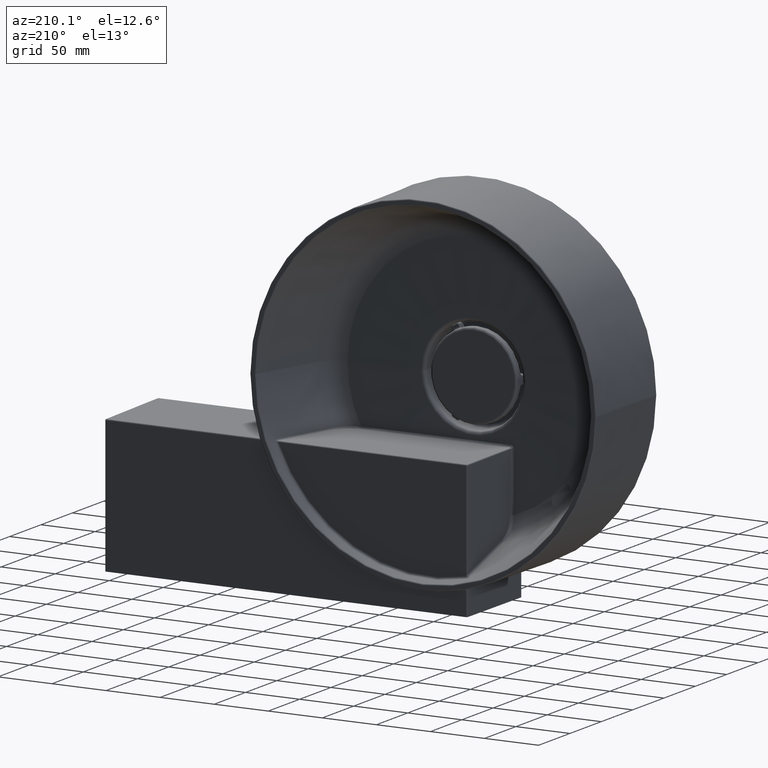
[diagram: clean part render]
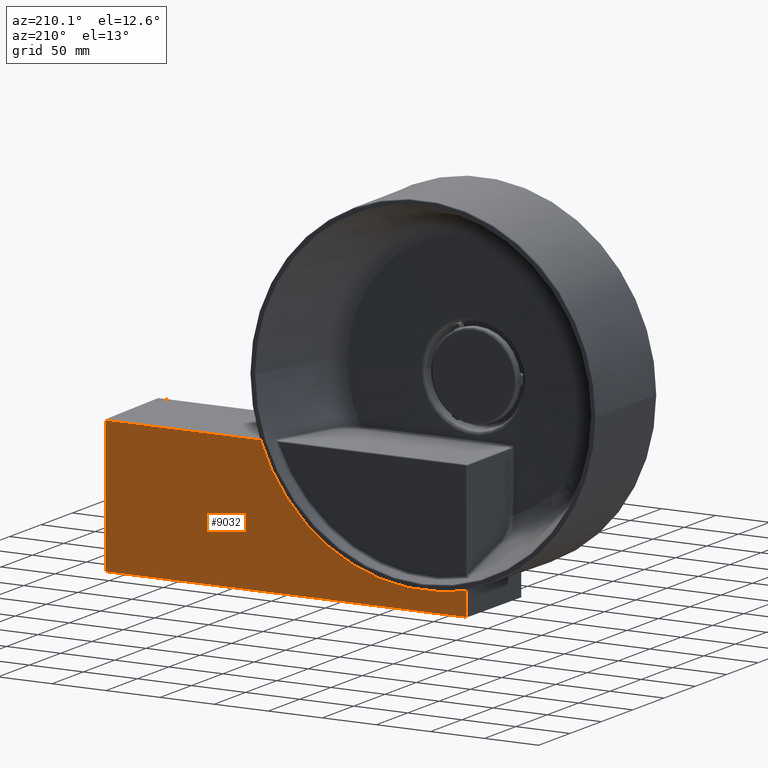
[diagram: same view with one face highlighted and labeled with its STEP entity id]
A machine part, auxiliary view. The second image highlights one B-rep face of the part: STEP entity #9032.
In plain terms, the highlighted planar face has unit normal (-0, 1, 0).
Its self-contained STEP definition (entity closure, byte-faithful):
#9 = LINE ( 'NONE', #3364, #6969 ) ;
#104 = CIRCLE ( 'NONE', #7248, 162.0612403866282420 ) ;
#328 = VERTEX_POINT ( 'NONE', #9225 ) ;
#1047 = CARTESIAN_POINT ( 'NONE',  ( -1.303350081333859496E-14, 106.7993909727526614, 0.0000000000000000000 ) ) ;
#1377 = DIRECTION ( 'NONE',  ( 1.242786967863980845E-16, -1.000000000000000000, -0.0000000000000000000 ) ) ;
#1574 = ORIENTED_EDGE ( 'NONE', *, *, #7617, .T. ) ;
#1639 = VERTEX_POINT ( 'NONE', #5025 ) ;
#1660 = ORIENTED_EDGE ( 'NONE', *, *, #6269, .T. ) ;
#1695 = ORIENTED_EDGE ( 'NONE', *, *, #9076, .T. ) ;
#1744 = CARTESIAN_POINT ( 'NONE',  ( 299.0086887894050847, 106.7993909727527040, 0.0000000000000000000 ) ) ;
#1752 = ORIENTED_EDGE ( 'NONE', *, *, #8671, .T. ) ;
#1804 = ORIENTED_EDGE ( 'NONE', *, *, #9615, .F. ) ;
#1944 = VECTOR ( 'NONE', #3032, 1000.000000000000000 ) ;
#2170 = CARTESIAN_POINT ( 'NONE',  ( -1.303350081333859496E-14, 106.7993909727526614, -55.99131121059497218 ) ) ;
#3032 = DIRECTION ( 'NONE',  ( 1.000000000000000000, 1.242786967863980845E-16, 0.0000000000000000000 ) ) ;
#3364 = CARTESIAN_POINT ( 'NONE',  ( -34.00868878940502782, 106.7993909727526614, 0.0000000000000000000 ) ) ;
#3793 = VECTOR ( 'NONE', #4946, 1000.000000000000000 ) ;
#4296 = DIRECTION ( 'NONE',  ( -1.242786967863980845E-16, 1.000000000000000000, 0.0000000000000000000 ) ) ;
#4615 = DIRECTION ( 'NONE',  ( -1.000000000000000000, -8.563298525117002422E-17, 0.0000000000000000000 ) ) ;
#4946 = DIRECTION ( 'NONE',  ( -0.0000000000000000000, -0.0000000000000000000, -1.000000000000000000 ) ) ;
#4970 = CARTESIAN_POINT ( 'NONE',  ( 152.0816185624377397, 106.7993909727526756, -55.99131121059497218 ) ) ;
#5025 = CARTESIAN_POINT ( 'NONE',  ( 299.0086887894050847, 106.7993909727527040, -55.99131121059497218 ) ) ;
#5086 = FACE_OUTER_BOUND ( 'NONE', #8669, .T. ) ;
#5354 = DIRECTION ( 'NONE',  ( 1.000000000000000000, 1.242786967863980845E-16, 1.925929944387235853E-34 ) ) ;
#6251 = CARTESIAN_POINT ( 'NONE',  ( 299.0086887894050847, 106.7993909727527040, -180.0000000000000000 ) ) ;
#6269 = EDGE_CURVE ( 'NONE', #328, #8349, #104, .T. ) ;
#6419 = DIRECTION ( 'NONE',  ( -0.0000000000000000000, -0.0000000000000000000, 1.000000000000000000 ) ) ;
#6843 = LINE ( 'NONE', #9388, #1944 ) ;
#6969 = VECTOR ( 'NONE', #6419, 1000.000000000000000 ) ;
#7049 = VERTEX_POINT ( 'NONE', #6251 ) ;
#7248 = AXIS2_PLACEMENT_3D ( 'NONE', #8242, #1377, #4615 ) ;
#7316 = DIRECTION ( 'NONE',  ( -1.000000000000000000, -1.242786967863980845E-16, 0.0000000000000000000 ) ) ;
#7617 = EDGE_CURVE ( 'NONE', #7762, #328, #9, .T. ) ;
#7762 = VERTEX_POINT ( 'NONE', #8334 ) ;
#8020 = PLANE ( 'NONE',  #9477 ) ;
#8141 = VECTOR ( 'NONE', #5354, 1000.000000000000000 ) ;
#8242 = CARTESIAN_POINT ( 'NONE',  ( 1.283287733955359827E-15, 106.7993909727526614, 0.0000000000000000000 ) ) ;
#8334 = CARTESIAN_POINT ( 'NONE',  ( -34.00868878940502782, 106.7993909727526614, -180.0000000000000000 ) ) ;
#8349 = VERTEX_POINT ( 'NONE', #4970 ) ;
#8494 = LINE ( 'NONE', #1744, #3793 ) ;
#8669 = EDGE_LOOP ( 'NONE', ( #1574, #1660, #1695, #1752, #1804 ) ) ;
#8671 = EDGE_CURVE ( 'NONE', #1639, #7049, #8494, .T. ) ;
#8769 = LINE ( 'NONE', #2170, #8141 ) ;
#9032 = ADVANCED_FACE ( 'NONE', ( #5086 ), #8020, .T. ) ;
#9076 = EDGE_CURVE ( 'NONE', #8349, #1639, #8769, .T. ) ;
#9225 = CARTESIAN_POINT ( 'NONE',  ( -34.00868878940502782, 106.7993909727526614, -158.4526892245060594 ) ) ;
#9388 = CARTESIAN_POINT ( 'NONE',  ( -35.00000000000000711, 106.7993909727526614, -180.0000000000000000 ) ) ;
#9477 = AXIS2_PLACEMENT_3D ( 'NONE', #1047, #4296, #7316 ) ;
#9615 = EDGE_CURVE ( 'NONE', #7762, #7049, #6843, .T. ) ;